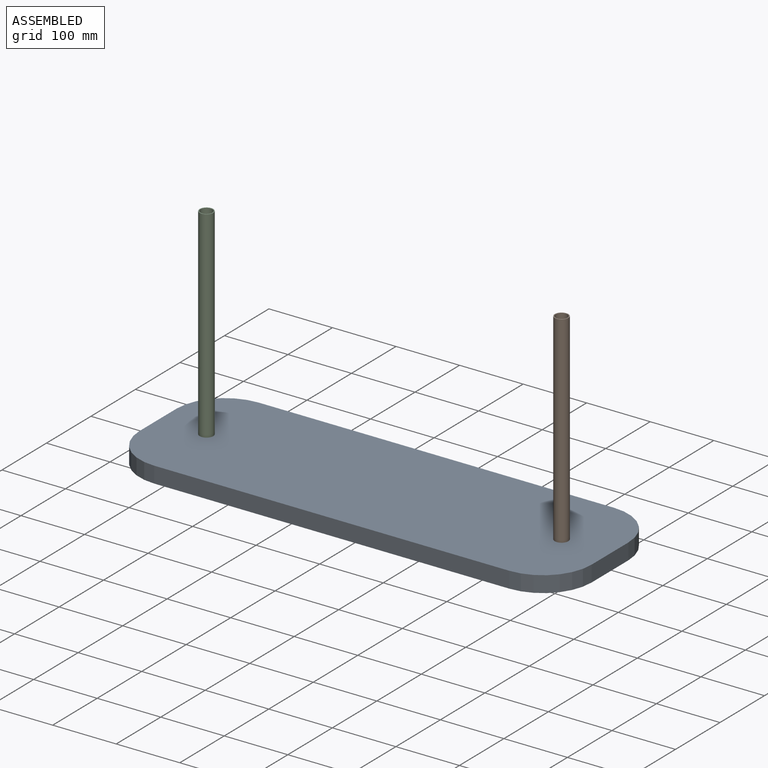
[diagram: assembled view]
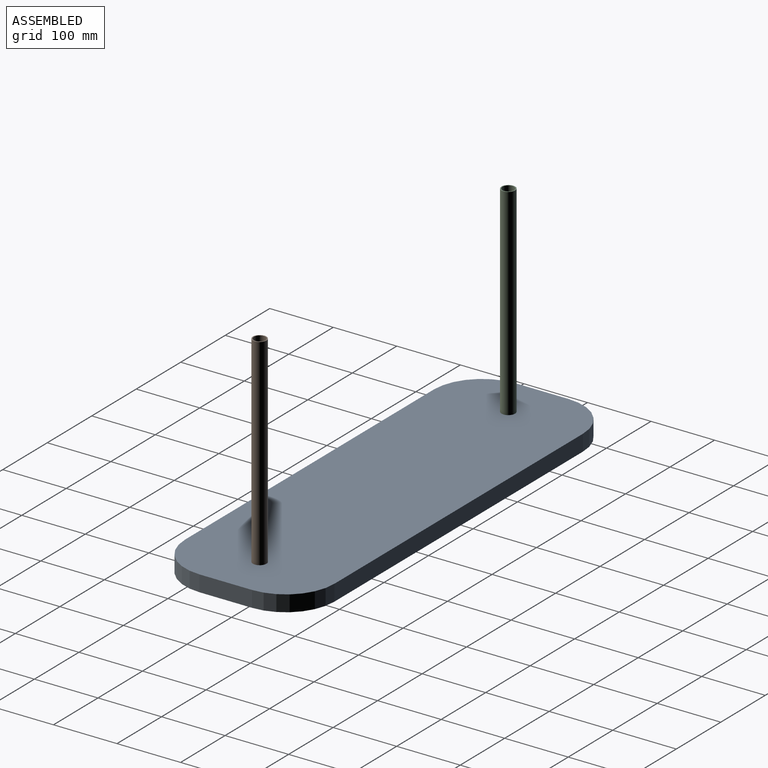
[diagram: assembled view, second angle]
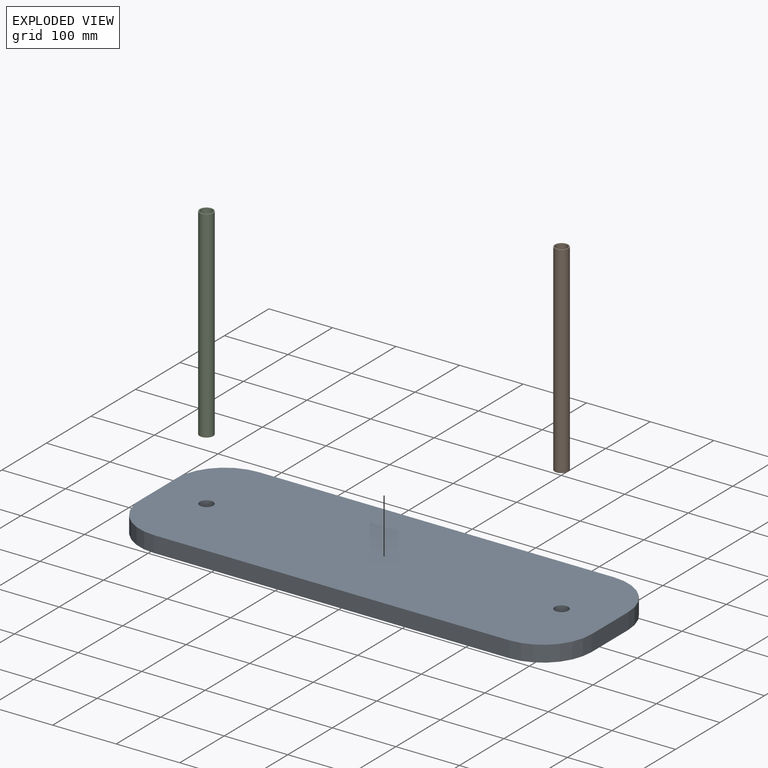
[diagram: exploded view]
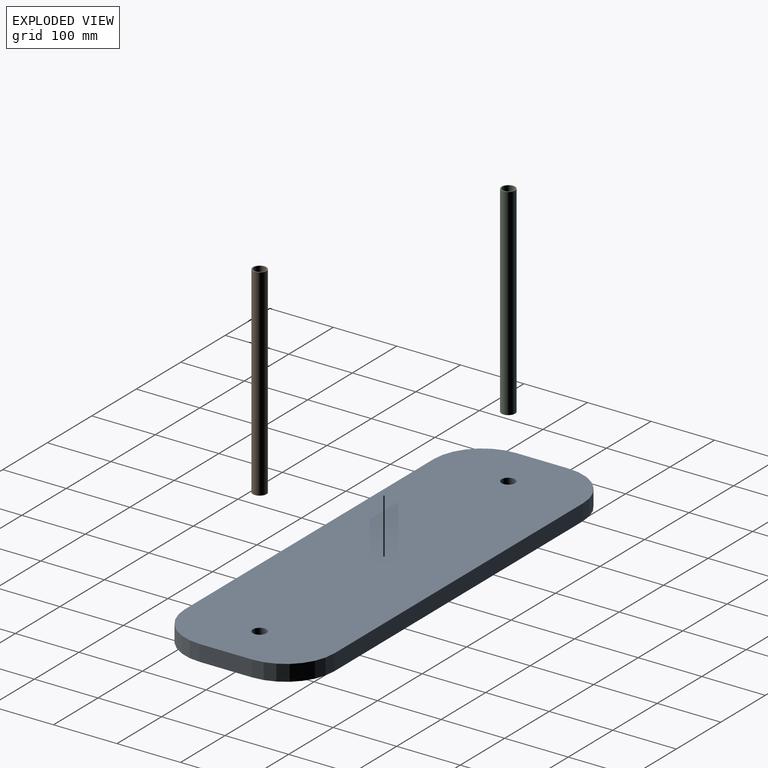
[diagram: exploded view, second angle]
ASSEMBLY  parts=3 mates=2
PART A: 12 faces, bbox 711.2x235x25.4 mm
  f0: plane 558.8x25.4mm, normal (0,-1,0), area 14193.5mm2, adj f1,f9,f10,f11
  f1: cylinder r=76.2mm len=76.2mm, axis (0,0,-1), area 3040.2mm2, adj f0,f2,f10,f11
  f2: plane 82.55x25.4mm, normal (1,0,0), area 2096.8mm2, adj f1,f3,f10,f11
  f3: cylinder r=76.2mm len=76.2mm, axis (0,0,-1), area 3040.2mm2, adj f2,f4,f10,f11
  f4: plane 558.8x25.4mm, normal (0,1,0), area 14193.5mm2, adj f3,f5,f10,f11
  f5: cylinder r=76.2mm len=76.2mm, axis (0,0,-1), area 3040.2mm2, adj f4,f6,f10,f11
  f6: plane 82.55x25.4mm, normal (-1,0,0), area 2096.8mm2, adj f5,f9,f10,f11
  f7: cylinder r=10.67mm len=25.4mm, axis (0,0,-1), area 1702.5mm2, adj f10,f11
  f8: cylinder r=10.67mm len=25.4mm, axis (0,0,-1), area 1702.5mm2, adj f10,f11
  f9: cylinder r=76.2mm len=76.2mm, axis (0,0,-1), area 3040.2mm2, adj f0,f6,f10,f11
  f10: plane 711.2x234.95mm, normal (0,0,1), area 161397.1mm2, adj f0,f1,f2,f3,f4,f5,f6,f7
  f11: plane 711.2x234.95mm, normal (0,0,-1), area 161397.1mm2, adj f0,f1,f2,f3,f4,f5,f6,f7
PART B: 4 faces, bbox 21.3x21.3x317.5 mm
  f0: cylinder r=9.28mm len=317.5mm, axis (0,0,-1), area 18520.2mm2, adj f2,f3
  f1: cylinder r=10.67mm len=317.5mm, axis (0,0,-1), area 21281.7mm2, adj f2,f3
  f2: plane 21.34x21.34mm, normal (0,0,1), area 86.8mm2, adj f0,f1
  f3: plane 21.34x21.34mm, normal (0,0,-1), area 86.8mm2, adj f0,f1
PART C: same geometry as B
PLACE A t=(0.84,0.64,0.15)mm
PLACE B t=(280.24,0.64,25.55)mm
PLACE C t=(-278.56,0.64,25.55)mm
MATE slider C.f1 <-> A.f7  axis (0,0,-1) through (-278.56,0.64,25.55)mm
MATE slider B.f1 <-> A.f8  axis (0,0,-1) through (280.24,0.64,25.55)mm
